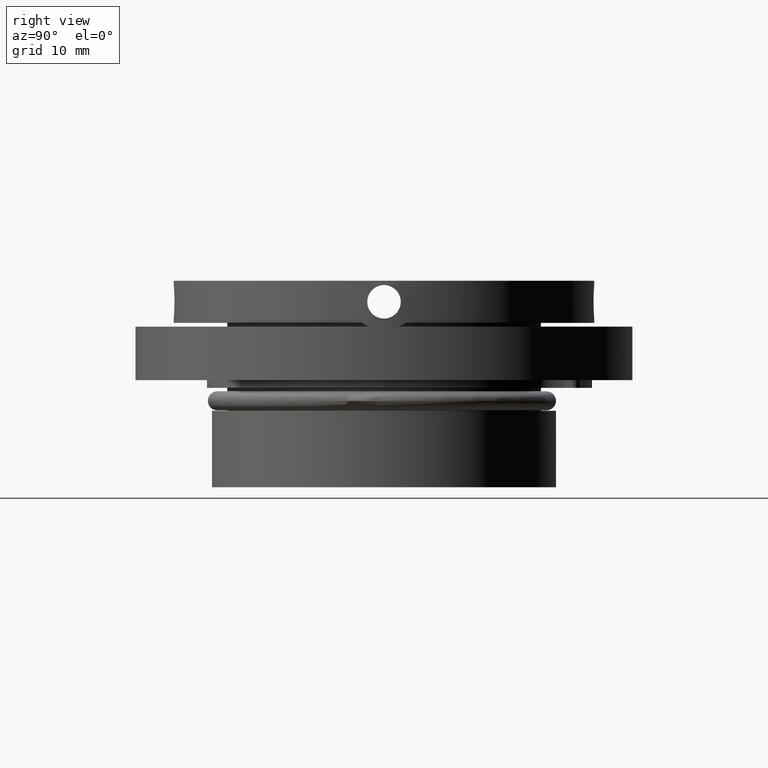
[diagram: clean part render]
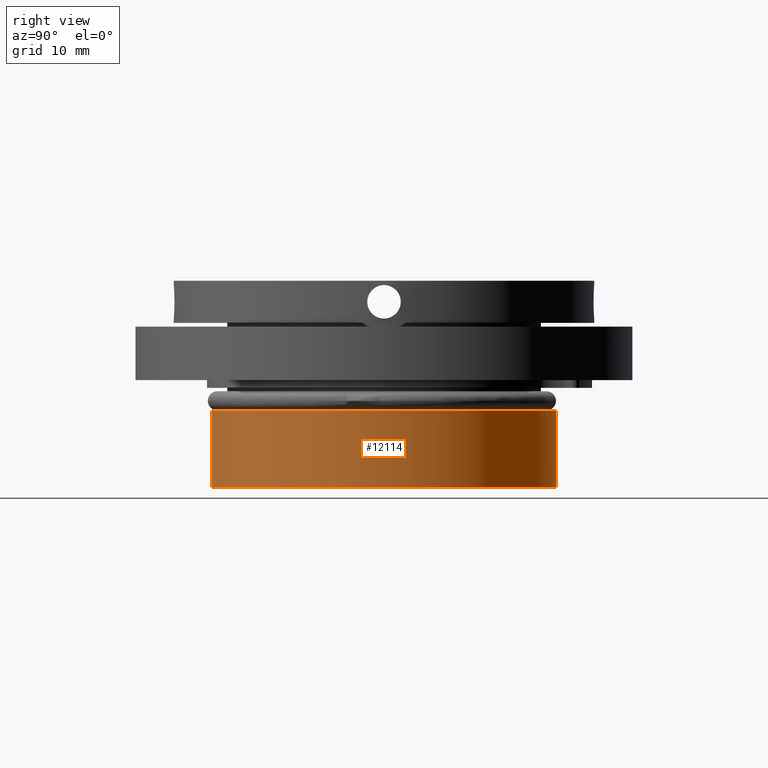
[diagram: same view with one face highlighted and labeled with its STEP entity id]
A machine part, right view. The second image highlights one B-rep face of the part: STEP entity #12114.
In plain terms, the highlighted cylindrical surface (partial cylindrical patch) has radius 22.5 mm, axis along (-0, -0, 1).
Its self-contained STEP definition (entity closure, byte-faithful):
#67 = VECTOR ( 'NONE', #13783, 1000.000000000000000 ) ;
#70 = DIRECTION ( 'NONE',  ( 0.000000000000000000, -1.000000000000000000, -1.541976423090494647E-16 ) ) ;
#283 = CARTESIAN_POINT ( 'NONE',  ( 0.000000000000000000, -22.50000000000001066, 13.49999999999999645 ) ) ;
#382 = DIRECTION ( 'NONE',  ( -0.000000000000000000, -1.836970198721029441E-16, 1.000000000000000000 ) ) ;
#987 = CARTESIAN_POINT ( 'NONE',  ( 2.755455298081545567E-15, 22.50000000000000000, -3.499999999999996891 ) ) ;
#1125 = CARTESIAN_POINT ( 'NONE',  ( 0.000000000000000000, 0.000000000000000000, -13.50000000000000000 ) ) ;
#2684 = CARTESIAN_POINT ( 'NONE',  ( 0.000000000000000000, -4.959819536546779811E-15, 13.50000000000000000 ) ) ;
#2687 = DIRECTION ( 'NONE',  ( -0.000000000000000000, -1.836970198721029441E-16, 1.000000000000000000 ) ) ;
#3378 = VERTEX_POINT ( 'NONE', #13218 ) ;
#4528 = CARTESIAN_POINT ( 'NONE',  ( 0.000000000000000000, -1.836970198721029194E-15, -3.500000000000001332 ) ) ;
#4562 = EDGE_CURVE ( 'NONE', #8716, #6910, #14689, .T. ) ;
#5213 = DIRECTION ( 'NONE',  ( 0.000000000000000000, -1.000000000000000000, -1.541976423090494894E-16 ) ) ;
#5400 = DIRECTION ( 'NONE',  ( -0.000000000000000000, -1.836970198721029441E-16, 1.000000000000000000 ) ) ;
#5981 = AXIS2_PLACEMENT_3D ( 'NONE', #4528, #382, #15402 ) ;
#6268 = LINE ( 'NONE', #16091, #12538 ) ;
#6910 = VERTEX_POINT ( 'NONE', #987 ) ;
#7195 = ORIENTED_EDGE ( 'NONE', *, *, #9082, .F. ) ;
#7725 = EDGE_CURVE ( 'NONE', #3378, #15651, #8131, .T. ) ;
#8131 = CIRCLE ( 'NONE', #16020, 22.50000000000000355 ) ;
#8716 = VERTEX_POINT ( 'NONE', #14641 ) ;
#9082 = EDGE_CURVE ( 'NONE', #3378, #8716, #15875, .T. ) ;
#9272 = ORIENTED_EDGE ( 'NONE', *, *, #7725, .T. ) ;
#9328 = CARTESIAN_POINT ( 'NONE',  ( 2.755455298081545567E-15, 22.50000000000000355, -13.49999999999999645 ) ) ;
#10532 = AXIS2_PLACEMENT_3D ( 'NONE', #2684, #5400, #70 ) ;
#11480 = ORIENTED_EDGE ( 'NONE', *, *, #4562, .F. ) ;
#12114 = ADVANCED_FACE ( 'NONE', ( #16771 ), #14049, .T. ) ;
#12538 = VECTOR ( 'NONE', #2687, 1000.000000000000000 ) ;
#13218 = CARTESIAN_POINT ( 'NONE',  ( 0.000000000000000000, -22.50000000000000355, -13.50000000000000355 ) ) ;
#13420 = EDGE_CURVE ( 'NONE', #15651, #6910, #6268, .T. ) ;
#13783 = DIRECTION ( 'NONE',  ( -0.000000000000000000, -1.836970198721029441E-16, 1.000000000000000000 ) ) ;
#13950 = EDGE_LOOP ( 'NONE', ( #9272, #14337, #11480, #7195 ) ) ;
#14049 = CYLINDRICAL_SURFACE ( 'NONE', #10532, 22.50000000000000711 ) ;
#14337 = ORIENTED_EDGE ( 'NONE', *, *, #13420, .T. ) ;
#14641 = CARTESIAN_POINT ( 'NONE',  ( 0.000000000000000000, -22.50000000000000711, -3.500000000000005773 ) ) ;
#14654 = DIRECTION ( 'NONE',  ( -0.000000000000000000, -1.836970198721029441E-16, 1.000000000000000000 ) ) ;
#14689 = CIRCLE ( 'NONE', #5981, 22.50000000000000355 ) ;
#15402 = DIRECTION ( 'NONE',  ( 0.000000000000000000, -1.000000000000000000, -1.927470528863118802E-16 ) ) ;
#15651 = VERTEX_POINT ( 'NONE', #9328 ) ;
#15875 = LINE ( 'NONE', #283, #67 ) ;
#16020 = AXIS2_PLACEMENT_3D ( 'NONE', #1125, #14654, #5213 ) ;
#16091 = CARTESIAN_POINT ( 'NONE',  ( 2.755455298081545567E-15, 22.50000000000000355, 13.50000000000000355 ) ) ;
#16771 = FACE_OUTER_BOUND ( 'NONE', #13950, .T. ) ;